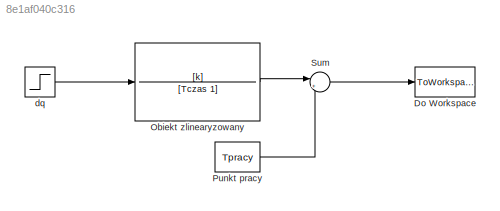
MODEL slx_8e1af040c316
KIND model
CONFIG AbsTol = auto
CONFIG EnableMultiTasking = off
CONFIG FixedStep = 1e-3
CONFIG MaxStep = 1e-3
CONFIG MinStep = auto
CONFIG RelTol = 1e-3
CONFIG SampleTimeConstraint = Unconstrained
CONFIG Solver = ode15s
CONFIG SolverName = ode15s
CONFIG StartTime = 0.0
CONFIG StopTime = 10
BLOCK [ToWorkspace] Do Workspace
  FixptAsFi = on
  MaxDataPoints = inf
  Ports = [1]
  SampleTime = 1e-3
  Save2DSignal = 3-D array (concatenate along third dimension)
  SaveFormat = Timeseries
  VariableName = Tzlin
BLOCK [TransferFcn] Obiekt zlinearyzowany
  Denominator = [Tczas 1]
  Numerator = [k]
BLOCK [Constant] Punkt pracy
  Value = Tpracy
BLOCK [Sum] Sum
  IconShape = round
  InputSameDT = off
  Inputs = |++
  OutDataTypeStr = Inherit: Inherit via internal rule
  Ports = [2, 1]
  SaturateOnIntegerOverflow = off
BLOCK [Step] dq
  After = dq
  SampleTime = 0
  Time = 0
LINE Obiekt zlinearyzowany:1 -> Sum:1
LINE Punkt pracy:1 -> Sum:2
LINE Sum:1 -> Do Workspace:1
LINE dq:1 -> Obiekt zlinearyzowany:1
